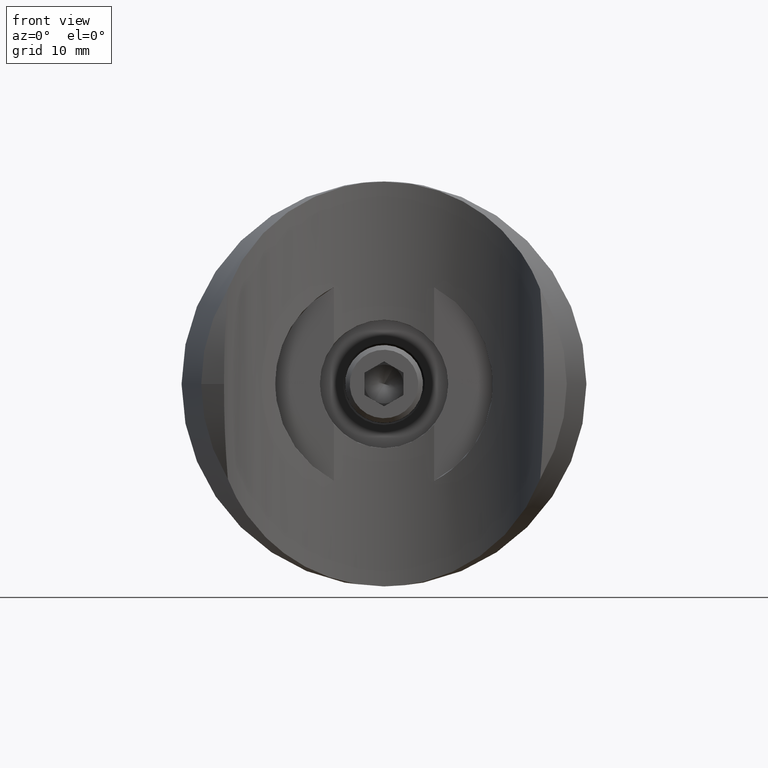
[diagram: clean part render]
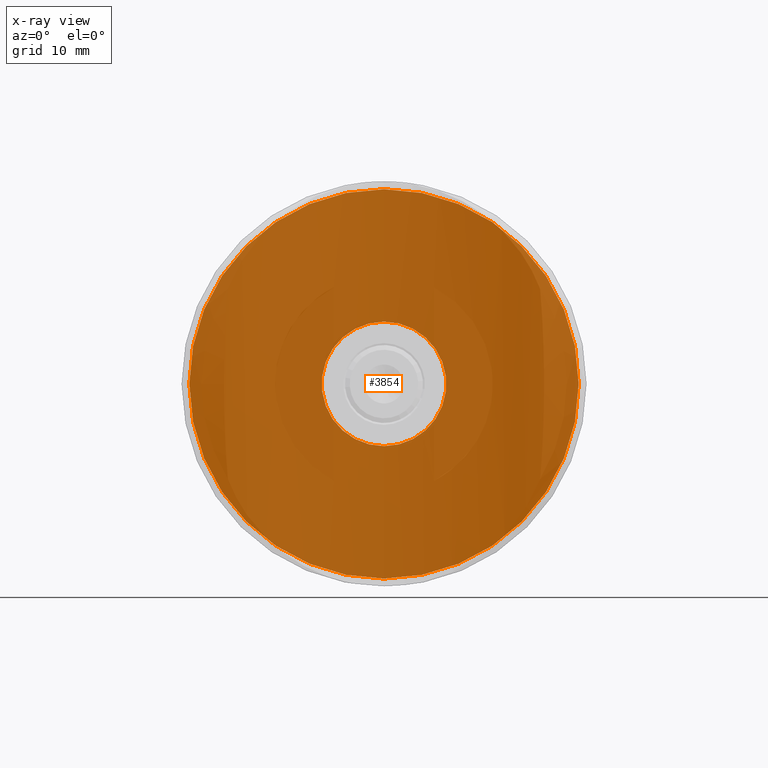
[diagram: x-ray — body ghosted, one internal face saturated and labeled with its STEP entity id]
A machine part, front view, then the same camera in x-ray: the body is ghosted and one INTERNAL B-rep face — a face not visible from any outside direction — is saturated and labeled: STEP entity #3854.
In plain terms, the highlighted planar face has unit normal (0, -1, 0).
Its self-contained STEP definition (entity closure, byte-faithful):
#1608 = AXIS2_PLACEMENT_3D ( 'NONE', #9028, #11775, #12914 ) ;
#2184 = DIRECTION ( 'NONE',  ( -0.000000000000000000, 1.000000000000000000, -0.000000000000000000 ) ) ;
#2302 = ORIENTED_EDGE ( 'NONE', *, *, #12555, .T. ) ;
#2375 = VERTEX_POINT ( 'NONE', #14318 ) ;
#2432 = CARTESIAN_POINT ( 'NONE',  ( 3.607365638562237181E-15, -4.000000000000000000, -25.00000000000000000 ) ) ;
#3025 = DIRECTION ( 'NONE',  ( -0.000000000000000000, 1.000000000000000000, -0.000000000000000000 ) ) ;
#3064 = CARTESIAN_POINT ( 'NONE',  ( 7.000000000000000888, -4.000000000000000000, 0.000000000000000000 ) ) ;
#3854 = ADVANCED_FACE ( 'NONE', ( #9400, #5516 ), #4299, .F. ) ;
#4299 = PLANE ( 'NONE',  #5403 ) ;
#5169 = CARTESIAN_POINT ( 'NONE',  ( 5.457486406938542366E-16, -4.000000000000000000, 0.000000000000000000 ) ) ;
#5403 = AXIS2_PLACEMENT_3D ( 'NONE', #3064, #14913, #7063 ) ;
#5516 = FACE_OUTER_BOUND ( 'NONE', #15961, .T. ) ;
#5717 = DIRECTION ( 'NONE',  ( 0.000000000000000000, 0.000000000000000000, 1.000000000000000000 ) ) ;
#5763 = AXIS2_PLACEMENT_3D ( 'NONE', #15025, #3025, #5717 ) ;
#5875 = ORIENTED_EDGE ( 'NONE', *, *, #8813, .T. ) ;
#6246 = DIRECTION ( 'NONE',  ( -0.000000000000000000, 1.000000000000000000, -0.000000000000000000 ) ) ;
#6262 = DIRECTION ( 'NONE',  ( 0.000000000000000000, 0.000000000000000000, 1.000000000000000000 ) ) ;
#6458 = AXIS2_PLACEMENT_3D ( 'NONE', #11461, #2184, #6262 ) ;
#7063 = DIRECTION ( 'NONE',  ( 0.000000000000000000, 0.000000000000000000, 1.000000000000000000 ) ) ;
#8105 = CARTESIAN_POINT ( 'NONE',  ( 5.457486406938542366E-16, -4.000000000000000000, -8.000000000000014211 ) ) ;
#8189 = VERTEX_POINT ( 'NONE', #8105 ) ;
#8519 = ORIENTED_EDGE ( 'NONE', *, *, #16227, .F. ) ;
#8813 = EDGE_CURVE ( 'NONE', #8189, #2375, #14941, .T. ) ;
#9028 = CARTESIAN_POINT ( 'NONE',  ( 5.457486406938542366E-16, -4.000000000000000000, 0.000000000000000000 ) ) ;
#9400 = FACE_BOUND ( 'NONE', #13409, .T. ) ;
#11256 = ORIENTED_EDGE ( 'NONE', *, *, #15419, .F. ) ;
#11461 = CARTESIAN_POINT ( 'NONE',  ( 5.457486406938542366E-16, -4.000000000000000000, 0.000000000000000000 ) ) ;
#11775 = DIRECTION ( 'NONE',  ( -0.000000000000000000, 1.000000000000000000, -0.000000000000000000 ) ) ;
#12211 = VERTEX_POINT ( 'NONE', #2432 ) ;
#12555 = EDGE_CURVE ( 'NONE', #2375, #8189, #13991, .T. ) ;
#12914 = DIRECTION ( 'NONE',  ( 0.000000000000000000, 0.000000000000000000, 1.000000000000000000 ) ) ;
#13409 = EDGE_LOOP ( 'NONE', ( #5875, #2302 ) ) ;
#13546 = CIRCLE ( 'NONE', #6458, 25.00000000000000000 ) ;
#13991 = CIRCLE ( 'NONE', #5763, 8.000000000000014211 ) ;
#14318 = CARTESIAN_POINT ( 'NONE',  ( 1.525466080011738479E-15, -4.000000000000000000, 8.000000000000014211 ) ) ;
#14690 = CARTESIAN_POINT ( 'NONE',  ( 5.457486406938542366E-16, -4.000000000000000000, 25.00000000000000000 ) ) ;
#14702 = AXIS2_PLACEMENT_3D ( 'NONE', #5169, #6246, #16740 ) ;
#14913 = DIRECTION ( 'NONE',  ( -0.000000000000000000, 1.000000000000000000, 0.000000000000000000 ) ) ;
#14941 = CIRCLE ( 'NONE', #1608, 8.000000000000014211 ) ;
#15025 = CARTESIAN_POINT ( 'NONE',  ( 5.457486406938542366E-16, -4.000000000000000000, 0.000000000000000000 ) ) ;
#15419 = EDGE_CURVE ( 'NONE', #12211, #16475, #15848, .T. ) ;
#15848 = CIRCLE ( 'NONE', #14702, 25.00000000000000000 ) ;
#15961 = EDGE_LOOP ( 'NONE', ( #8519, #11256 ) ) ;
#16227 = EDGE_CURVE ( 'NONE', #16475, #12211, #13546, .T. ) ;
#16475 = VERTEX_POINT ( 'NONE', #14690 ) ;
#16740 = DIRECTION ( 'NONE',  ( 0.000000000000000000, 0.000000000000000000, 1.000000000000000000 ) ) ;